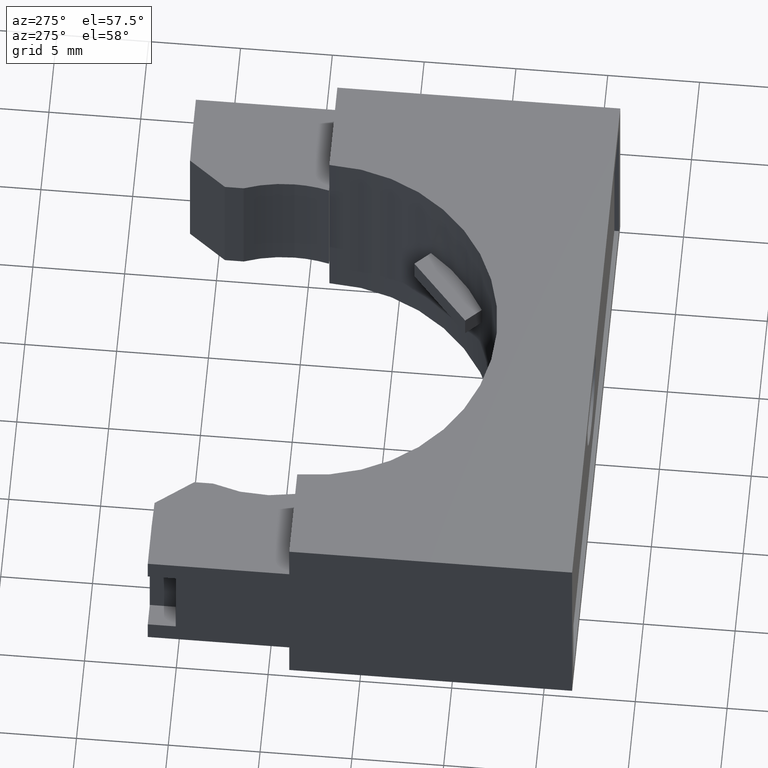
[diagram: clean part render]
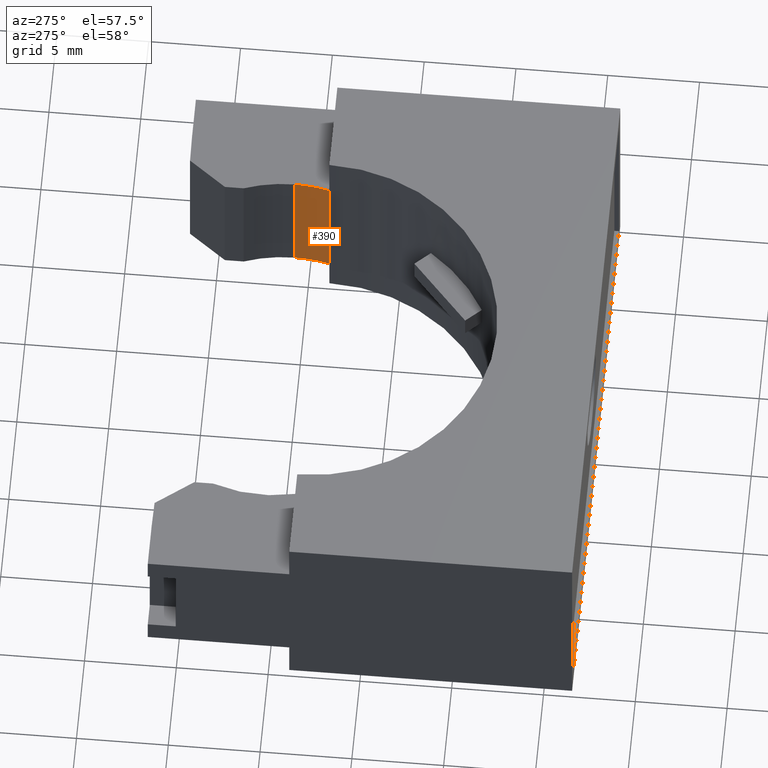
[diagram: same view with one face highlighted and labeled with its STEP entity id]
A machine part, auxiliary view. The second image highlights one B-rep face of the part: STEP entity #390.
In plain terms, the highlighted cylindrical surface (partial cylindrical patch) has radius 7.8661 mm, axis along (-0, -0, 1).
Its self-contained STEP definition (entity closure, byte-faithful):
#20 = EDGE_CURVE ( 'NONE', #30, #42, #1746, .T. ) ;
#30 = VERTEX_POINT ( 'NONE', #1707 ) ;
#42 = VERTEX_POINT ( 'NONE', #1629 ) ;
#356 = ORIENTED_EDGE ( 'NONE', *, *, #357, .T. ) ;
#357 = EDGE_CURVE ( 'NONE', #30, #409, #1201, .T. ) ;
#358 = ORIENTED_EDGE ( 'NONE', *, *, #375, .T. ) ;
#369 = EDGE_LOOP ( 'NONE', ( #419, #356, #358, #377 ) ) ;
#375 = EDGE_CURVE ( 'NONE', #409, #376, #1243, .T. ) ;
#376 = VERTEX_POINT ( 'NONE', #1239 ) ;
#377 = ORIENTED_EDGE ( 'NONE', *, *, #378, .T. ) ;
#378 = EDGE_CURVE ( 'NONE', #376, #42, #1238, .T. ) ;
#390 = ADVANCED_FACE ( 'NONE', ( #1147 ), #1146, .F. ) ;
#409 = VERTEX_POINT ( 'NONE', #1138 ) ;
#419 = ORIENTED_EDGE ( 'NONE', *, *, #20, .F. ) ;
#1088 = DIRECTION ( 'NONE',  ( -4.465785822135326900E-015, -1.000000000000000000, -1.102663165959340000E-016 ) ) ;
#1138 = CARTESIAN_POINT ( 'NONE',  ( 0.3854666666666664600, 0.1516666666666670600, 0.08954999999999972700 ) ) ;
#1143 = DIRECTION ( 'NONE',  ( 1.000000000000000000, 0.0000000000000000000, 0.0000000000000000000 ) ) ;
#1144 = DIRECTION ( 'NONE',  ( -0.0000000000000000000, -0.0000000000000000000, 1.000000000000000000 ) ) ;
#1145 = AXIS2_PLACEMENT_3D ( 'NONE', #1151, #1144, #1143 ) ;
#1146 = CYLINDRICAL_SURFACE ( 'NONE', #1145, 0.3096874999999998400 ) ;
#1147 = FACE_OUTER_BOUND ( 'NONE', #369, .T. ) ;
#1151 = CARTESIAN_POINT ( 'NONE',  ( 0.08490476214538889000, 0.2262916571644378000, 0.0000000000000000000 ) ) ;
#1198 = DIRECTION ( 'NONE',  ( -0.0000000000000000000, 1.125761535850658700E-016, -1.000000000000000000 ) ) ;
#1199 = CARTESIAN_POINT ( 'NONE',  ( 0.08490476214538889000, 0.2262916571644378000, 0.08954999999999972700 ) ) ;
#1200 = AXIS2_PLACEMENT_3D ( 'NONE', #1199, #1198, #1088 ) ;
#1201 = CIRCLE ( 'NONE', #1200, 0.3096874999999998400 ) ;
#1234 = DIRECTION ( 'NONE',  ( -8.876438485972686600E-015, 1.000000000000000000, 2.205326331918679900E-016 ) ) ;
#1235 = DIRECTION ( 'NONE',  ( -0.0000000000000000000, -2.251523071701317000E-016, 1.000000000000000000 ) ) ;
#1236 = CARTESIAN_POINT ( 'NONE',  ( 0.08490476214538889000, 0.2262916571644378000, 0.3804500000000002300 ) ) ;
#1237 = AXIS2_PLACEMENT_3D ( 'NONE', #1236, #1235, #1234 ) ;
#1238 = CIRCLE ( 'NONE', #1237, 0.3096874999999998400 ) ;
#1239 = CARTESIAN_POINT ( 'NONE',  ( 0.3854666666666664600, 0.1516666666666671400, 0.3804500000000002300 ) ) ;
#1240 = DIRECTION ( 'NONE',  ( -0.0000000000000000000, -0.0000000000000000000, 1.000000000000000000 ) ) ;
#1241 = VECTOR ( 'NONE', #1240, 39.37007874015748100 ) ;
#1242 = CARTESIAN_POINT ( 'NONE',  ( 0.3854666666666664600, 0.1516666666666671400, 0.0000000000000000000 ) ) ;
#1243 = LINE ( 'NONE', #1242, #1241 ) ;
#1629 = CARTESIAN_POINT ( 'NONE',  ( 0.3945922621453887300, 0.2262916571644378000, 0.3804500000000002300 ) ) ;
#1707 = CARTESIAN_POINT ( 'NONE',  ( 0.3945922621453887300, 0.2262916571644378000, 0.08954999999999972700 ) ) ;
#1743 = DIRECTION ( 'NONE',  ( -0.0000000000000000000, -0.0000000000000000000, 1.000000000000000000 ) ) ;
#1744 = VECTOR ( 'NONE', #1743, 39.37007874015748100 ) ;
#1745 = CARTESIAN_POINT ( 'NONE',  ( 0.3945922621453887300, 0.2262916571644378000, 0.0000000000000000000 ) ) ;
#1746 = LINE ( 'NONE', #1745, #1744 ) ;